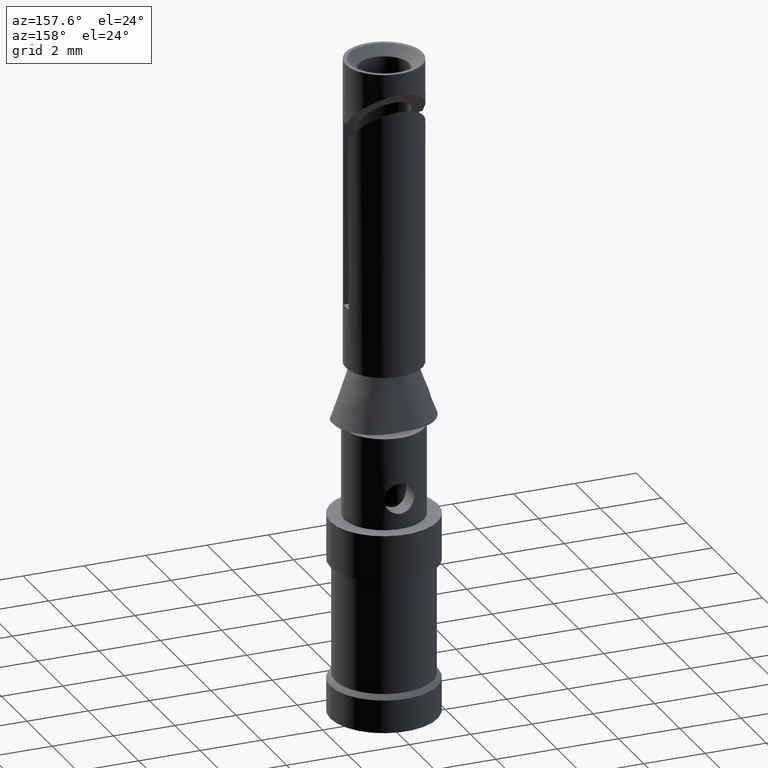
[diagram: clean part render]
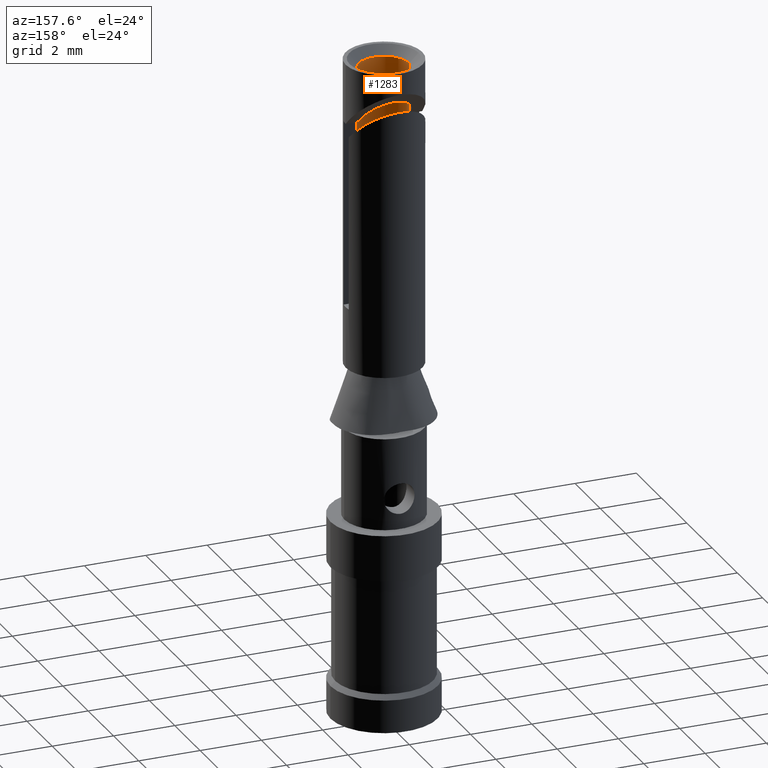
[diagram: same view with one face highlighted and labeled with its STEP entity id]
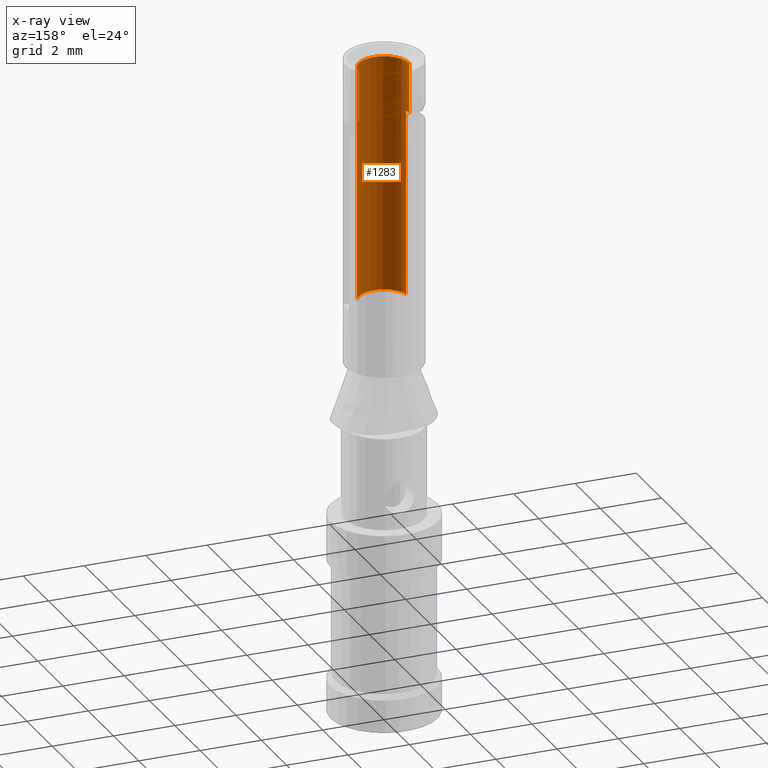
[diagram: x-ray of the same camera — body ghosted, the highlighted face saturated]
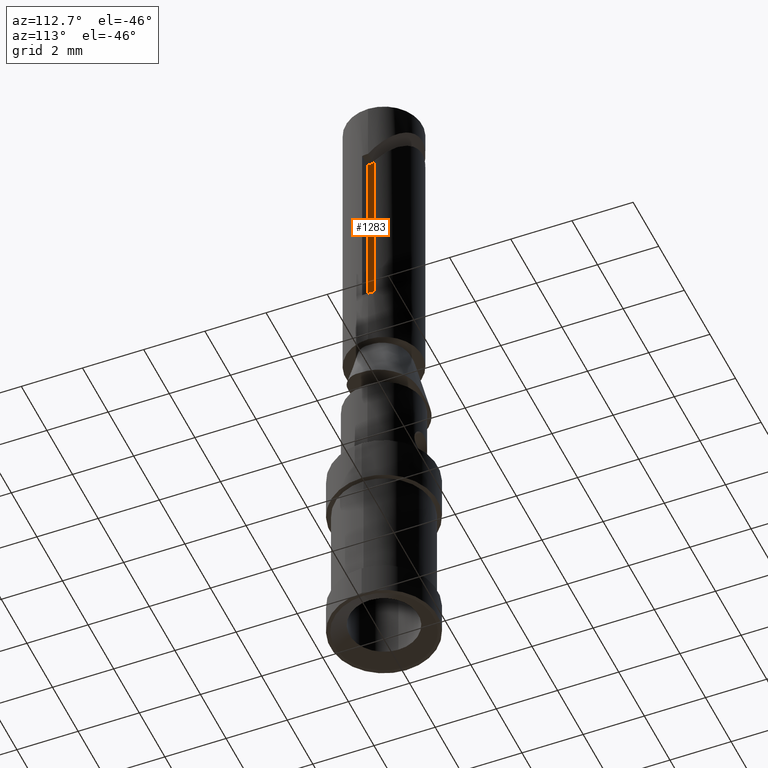
[diagram: same view with one face highlighted and labeled with its STEP entity id]
A machine part, auxiliary view. The second image highlights one B-rep face of the part: STEP entity #1283.
The next image is the same camera in x-ray: the body ghosted, the highlighted face saturated — about 0% of this face is hidden behind the body in this view.
A second angle (auxiliary view) of the same face is appended — the face is thin or edge-on in the first view.
In plain terms, the highlighted cylindrical surface (edge-blend (fillet) strip) has radius 0.825 mm, axis along (0, 0, -1).
Its self-contained STEP definition (entity closure, byte-faithful):
#41 = EDGE_CURVE ( 'NONE', #1526, #170, #902, .T. ) ;
#91 = DIRECTION ( 'NONE',  ( 0.000000000000000000, 0.000000000000000000, -1.000000000000000000 ) ) ;
#97 = CARTESIAN_POINT ( 'NONE',  ( 0.8249999999999999556, -4.187992942670209660E-15, 19.55000000000000071 ) ) ;
#110 = FACE_OUTER_BOUND ( 'NONE', #1675, .T. ) ;
#136 = EDGE_CURVE ( 'NONE', #1251, #282, #634, .T. ) ;
#155 = DIRECTION ( 'NONE',  ( 0.000000000000000000, 0.000000000000000000, -1.000000000000000000 ) ) ;
#170 = VERTEX_POINT ( 'NONE', #1729 ) ;
#181 = CARTESIAN_POINT ( 'NONE',  ( 0.000000000000000000, 0.000000000000000000, 19.55000000000000071 ) ) ;
#209 = EDGE_CURVE ( 'NONE', #1050, #984, #409, .T. ) ;
#237 = DIRECTION ( 'NONE',  ( -1.000000000000000000, 0.000000000000000000, 0.000000000000000000 ) ) ;
#260 = CARTESIAN_POINT ( 'NONE',  ( -0.8003905296791060664, -0.2000000000000000111, 13.50000000000000000 ) ) ;
#282 = VERTEX_POINT ( 'NONE', #1218 ) ;
#288 = CIRCLE ( 'NONE', #1701, 0.8249999999999999556 ) ;
#346 = CARTESIAN_POINT ( 'NONE',  ( 0.8249999999999999556, 1.010333609296566377E-16, 21.50000000000000000 ) ) ;
#371 = DIRECTION ( 'NONE',  ( -1.000000000000000000, 0.000000000000000000, 0.000000000000000000 ) ) ;
#391 = DIRECTION ( 'NONE',  ( 0.000000000000000000, 0.000000000000000000, 1.000000000000000000 ) ) ;
#396 = ORIENTED_EDGE ( 'NONE', *, *, #41, .T. ) ;
#399 = CARTESIAN_POINT ( 'NONE',  ( -0.8249999999999999556, 0.000000000000000000, 21.50000000000000000 ) ) ;
#409 = LINE ( 'NONE', #399, #1690 ) ;
#447 = AXIS2_PLACEMENT_3D ( 'NONE', #181, #1274, #1161 ) ;
#488 = ORIENTED_EDGE ( 'NONE', *, *, #1229, .F. ) ;
#517 = AXIS2_PLACEMENT_3D ( 'NONE', #1392, #1093, #1375 ) ;
#627 = CIRCLE ( 'NONE', #517, 0.8249999999999999556 ) ;
#634 = LINE ( 'NONE', #1635, #1112 ) ;
#638 = ORIENTED_EDGE ( 'NONE', *, *, #1610, .T. ) ;
#805 = VERTEX_POINT ( 'NONE', #1359 ) ;
#816 = ORIENTED_EDGE ( 'NONE', *, *, #1739, .T. ) ;
#822 = CARTESIAN_POINT ( 'NONE',  ( 0.8249999999999999556, 0.000000000000000000, 21.19999999999999929 ) ) ;
#845 = DIRECTION ( 'NONE',  ( -1.000000000000000000, 0.000000000000000000, 0.000000000000000000 ) ) ;
#892 = ORIENTED_EDGE ( 'NONE', *, *, #1102, .T. ) ;
#893 = CARTESIAN_POINT ( 'NONE',  ( -0.8249999999999999556, 1.194030629108720330E-16, 21.19999999999999929 ) ) ;
#897 = DIRECTION ( 'NONE',  ( 0.000000000000000000, 0.000000000000000000, -1.000000000000000000 ) ) ;
#901 = CARTESIAN_POINT ( 'NONE',  ( 0.000000000000000000, 0.000000000000000000, 19.55000000000000071 ) ) ;
#902 = CIRCLE ( 'NONE', #447, 0.8249999999999999556 ) ;
#923 = CYLINDRICAL_SURFACE ( 'NONE', #1005, 0.8249999999999999556 ) ;
#933 = ORIENTED_EDGE ( 'NONE', *, *, #1139, .T. ) ;
#984 = VERTEX_POINT ( 'NONE', #1427 ) ;
#1005 = AXIS2_PLACEMENT_3D ( 'NONE', #1255, #155, #845 ) ;
#1050 = VERTEX_POINT ( 'NONE', #893 ) ;
#1057 = LINE ( 'NONE', #346, #1711 ) ;
#1093 = DIRECTION ( 'NONE',  ( 0.000000000000000000, 0.000000000000000000, 1.000000000000000000 ) ) ;
#1102 = EDGE_CURVE ( 'NONE', #170, #805, #1448, .T. ) ;
#1112 = VECTOR ( 'NONE', #391, 1000.000000000000000 ) ;
#1114 = DIRECTION ( 'NONE',  ( 0.000000000000000000, 0.000000000000000000, 1.000000000000000000 ) ) ;
#1122 = ORIENTED_EDGE ( 'NONE', *, *, #136, .T. ) ;
#1139 = EDGE_CURVE ( 'NONE', #282, #984, #1740, .T. ) ;
#1161 = DIRECTION ( 'NONE',  ( -1.000000000000000000, 0.000000000000000000, 0.000000000000000000 ) ) ;
#1218 = CARTESIAN_POINT ( 'NONE',  ( -0.8003905296791060664, -0.2000000000000000111, 19.55000000000000071 ) ) ;
#1229 = EDGE_CURVE ( 'NONE', #1251, #805, #288, .T. ) ;
#1251 = VERTEX_POINT ( 'NONE', #260 ) ;
#1255 = CARTESIAN_POINT ( 'NONE',  ( 0.000000000000000000, 0.000000000000000000, 21.50000000000000000 ) ) ;
#1274 = DIRECTION ( 'NONE',  ( 0.000000000000000000, 0.000000000000000000, -1.000000000000000000 ) ) ;
#1283 = ADVANCED_FACE ( 'NONE', ( #110 ), #923, .F. ) ;
#1359 = CARTESIAN_POINT ( 'NONE',  ( 0.8003905296791060664, -0.2000000000000000111, 13.50000000000000000 ) ) ;
#1375 = DIRECTION ( 'NONE',  ( 1.000000000000000000, 0.000000000000000000, 0.000000000000000000 ) ) ;
#1392 = CARTESIAN_POINT ( 'NONE',  ( 0.000000000000000000, 0.000000000000000000, 21.19999999999999929 ) ) ;
#1427 = CARTESIAN_POINT ( 'NONE',  ( -0.8249999999999999556, -3.220164666810009986E-15, 19.55000000000000071 ) ) ;
#1448 = LINE ( 'NONE', #1606, #1479 ) ;
#1469 = AXIS2_PLACEMENT_3D ( 'NONE', #901, #91, #371 ) ;
#1473 = ORIENTED_EDGE ( 'NONE', *, *, #209, .F. ) ;
#1478 = CARTESIAN_POINT ( 'NONE',  ( 0.000000000000000000, 0.000000000000000000, 13.50000000000000000 ) ) ;
#1479 = VECTOR ( 'NONE', #1619, 1000.000000000000000 ) ;
#1526 = VERTEX_POINT ( 'NONE', #97 ) ;
#1606 = CARTESIAN_POINT ( 'NONE',  ( 0.8003905296791060664, -0.2000000000000000111, 21.50000000000000000 ) ) ;
#1610 = EDGE_CURVE ( 'NONE', #1734, #1526, #1057, .T. ) ;
#1619 = DIRECTION ( 'NONE',  ( 0.000000000000000000, 0.000000000000000000, -1.000000000000000000 ) ) ;
#1635 = CARTESIAN_POINT ( 'NONE',  ( -0.8003905296791060664, -0.2000000000000000111, 21.50000000000000000 ) ) ;
#1668 = DIRECTION ( 'NONE',  ( 0.000000000000000000, 0.000000000000000000, -1.000000000000000000 ) ) ;
#1675 = EDGE_LOOP ( 'NONE', ( #816, #638, #396, #892, #488, #1122, #933, #1473 ) ) ;
#1690 = VECTOR ( 'NONE', #1668, 1000.000000000000000 ) ;
#1701 = AXIS2_PLACEMENT_3D ( 'NONE', #1478, #1114, #237 ) ;
#1711 = VECTOR ( 'NONE', #897, 1000.000000000000000 ) ;
#1729 = CARTESIAN_POINT ( 'NONE',  ( 0.8003905296791060664, -0.2000000000000000111, 19.55000000000000071 ) ) ;
#1734 = VERTEX_POINT ( 'NONE', #822 ) ;
#1739 = EDGE_CURVE ( 'NONE', #1050, #1734, #627, .T. ) ;
#1740 = CIRCLE ( 'NONE', #1469, 0.8249999999999999556 ) ;